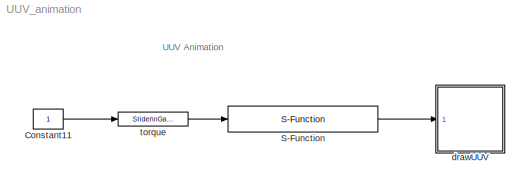
MODEL UUV_animation
KIND model
BLOCK [Constant] Constant11
  SID = 2
BLOCK [S-Function] S-Function
  EnableBusSupport = off
  FunctionName = ellipse_dynamics
  Parameters = AP
  Ports = [1, 1]
  SID = 13
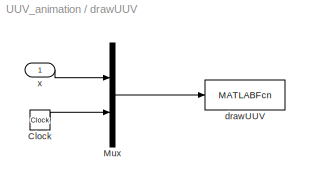
BLOCK [SubSystem] drawUUV
  Ports = [1]
  RequestExecContextInheritance = off
  SID = 4
BLOCK [Clock] drawUUV/Clock
  SID = 6
BLOCK [Mux] drawUUV/Mux
  DisplayOption = bar
  Inputs = 2
  Ports = [2, 1]
  SID = 7
BLOCK [MATLABFcn] drawUUV/drawUUV
  MATLABFcn = drawUUV(u,MajorAxis,MinorAxis,C_M)
  OutputDimensions = 0
  Ports = [1]
  SID = 8
  SampleTime = 0.1
BLOCK [Inport] drawUUV/x
  IconDisplay = Port number
  SID = 5
BLOCK [Reference] torque  REF=simulink/Math\nOperations/Slider\nGain
  Ports = [1, 1]
  SID = 9
  SourceBlock = simulink/Math\nOperations/Slider\nGain
  SourceType = Slider Gain
  gain = 32.4
  high = 180
  low = -180
ANNOTATION (root): UUV Animation
LINE Constant11:1 -> torque:1
LINE S-Function:1 -> drawUUV:1
LINE drawUUV/Clock:1 -> drawUUV/Mux:2
LINE drawUUV/Mux:1 -> drawUUV/drawUUV:1
LINE drawUUV/x:1 -> drawUUV/Mux:1
LINE torque:1 -> S-Function:1
